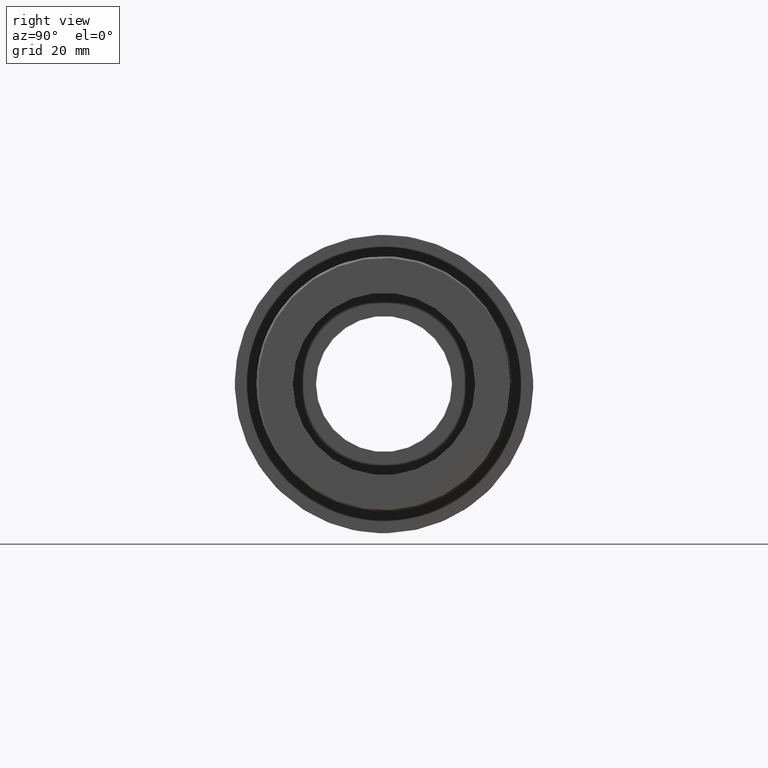
[diagram: clean part render]
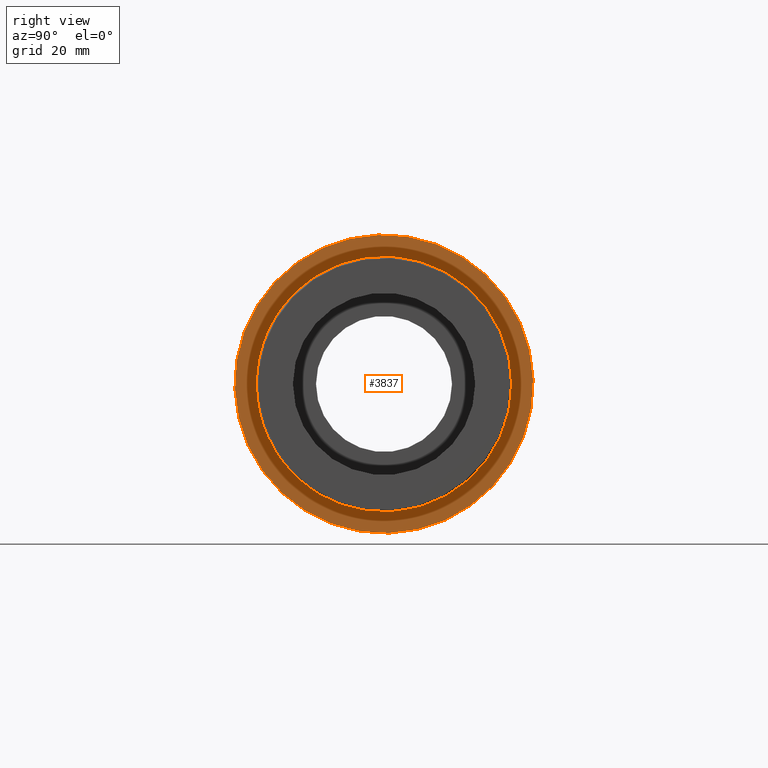
[diagram: same view with one face highlighted and labeled with its STEP entity id]
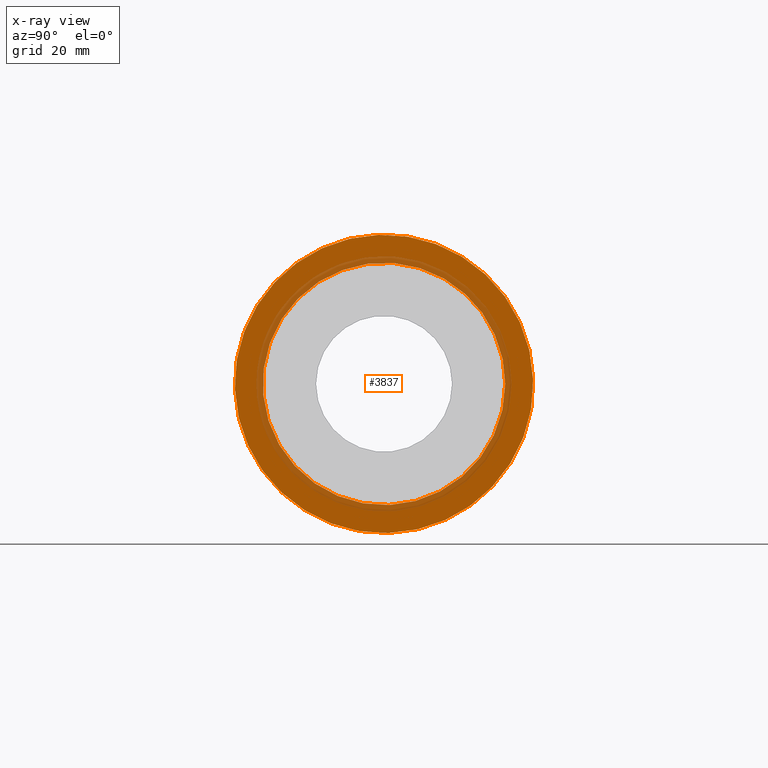
[diagram: x-ray of the same camera — body ghosted, the highlighted face saturated]
A machine part, right view. The second image highlights one B-rep face of the part: STEP entity #3837.
The next image is the same camera in x-ray: the body ghosted, the highlighted face saturated — about 22% of this face is hidden behind the body in this view.
In plain terms, the highlighted planar face has unit normal (1, 0, 0).
Its self-contained STEP definition (entity closure, byte-faithful):
#68=FACE_BOUND('',#1104,.T.);
#142=PLANE('',#4221);
#865=FACE_OUTER_BOUND('',#1103,.T.);
#1103=EDGE_LOOP('',(#3529));
#1104=EDGE_LOOP('',(#3530));
#1373=CIRCLE('',#4023,36.7);
#1490=CIRCLE('',#4222,29.821925);
#1685=VERTEX_POINT('',#6251);
#1884=VERTEX_POINT('',#8314);
#2135=EDGE_CURVE('',#1685,#1685,#1373,.T.);
#2453=EDGE_CURVE('',#1884,#1884,#1490,.T.);
#3529=ORIENTED_EDGE('',*,*,#2135,.T.);
#3530=ORIENTED_EDGE('',*,*,#2453,.F.);
#3837=ADVANCED_FACE('',(#865,#68),#142,.T.);
#4023=AXIS2_PLACEMENT_3D('',#6252,#4684,#4685);
#4221=AXIS2_PLACEMENT_3D('',#8313,#5188,#5189);
#4222=AXIS2_PLACEMENT_3D('',#8315,#5190,#5191);
#4684=DIRECTION('center_axis',(1.,0.,0.));
#4685=DIRECTION('ref_axis',(0.,0.,-1.));
#5188=DIRECTION('center_axis',(1.,0.,0.));
#5189=DIRECTION('ref_axis',(0.,0.,-1.));
#5190=DIRECTION('center_axis',(1.,0.,0.));
#5191=DIRECTION('ref_axis',(0.,0.,-1.));
#6251=CARTESIAN_POINT('',(-49.245,24.8920171487567,26.9680826583204));
#6252=CARTESIAN_POINT('Origin',(-49.245,0.,0.));
#8313=CARTESIAN_POINT('Origin',(-49.245,29.821925,0.));
#8314=CARTESIAN_POINT('',(-49.245,20.0236882896346,22.0997537991982));
#8315=CARTESIAN_POINT('Origin',(-49.245,0.,0.));